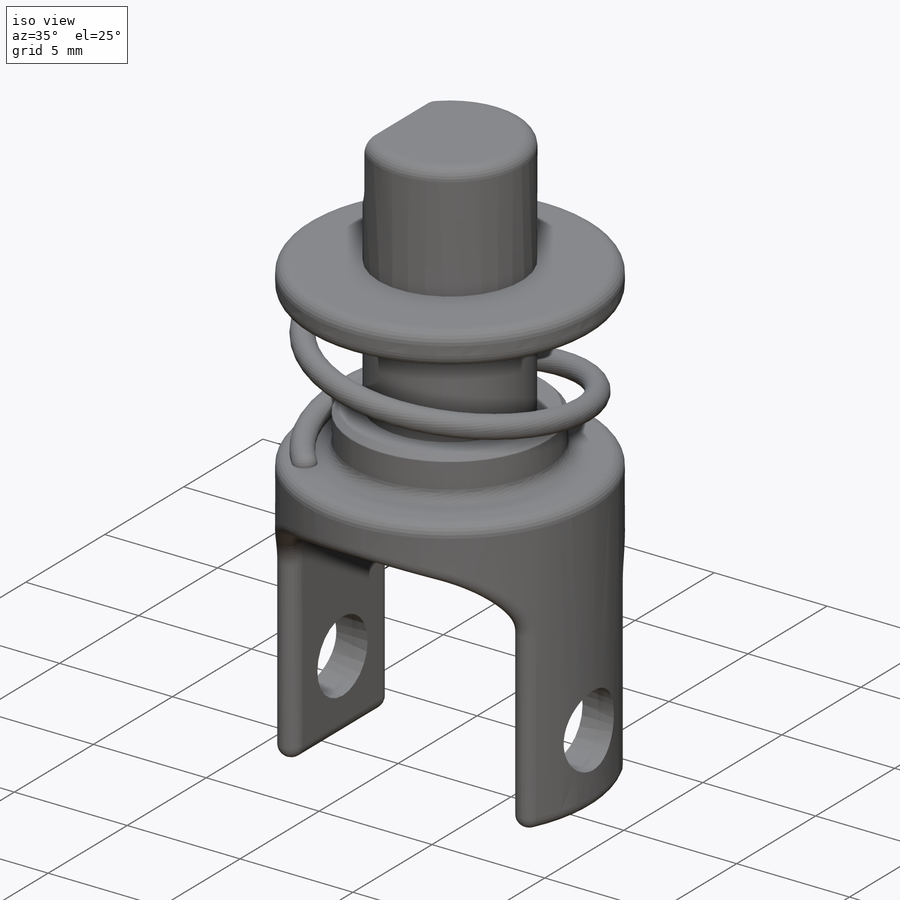
[diagram: iso view]
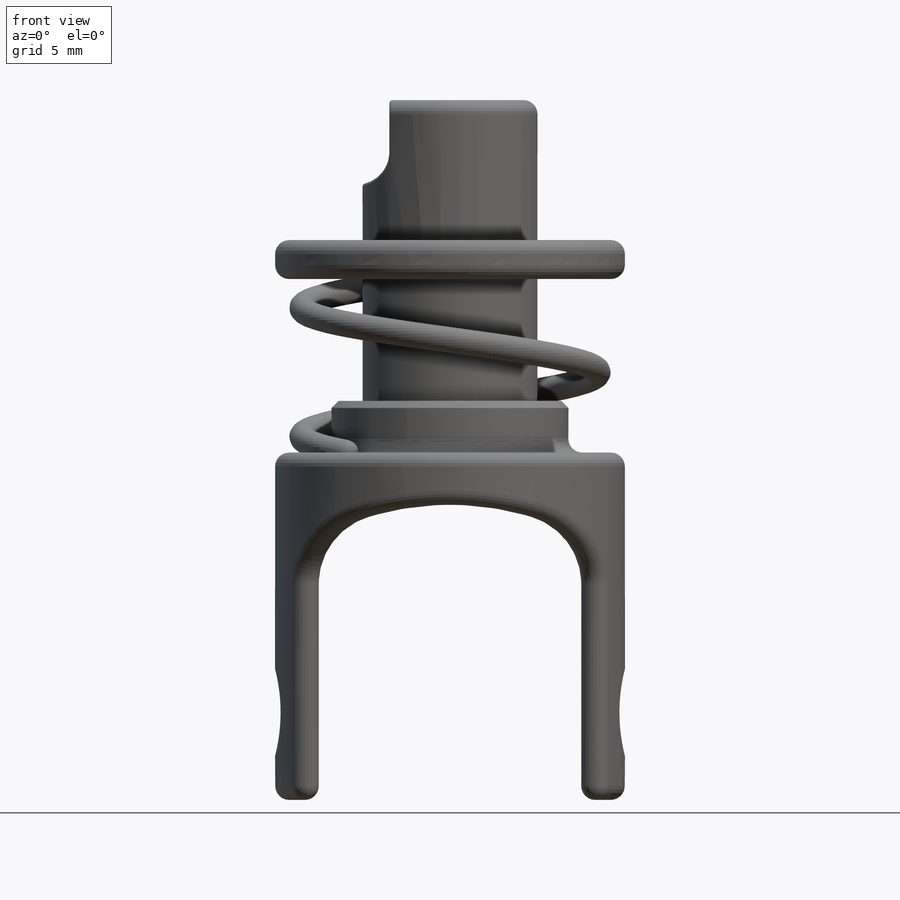
[diagram: front view]
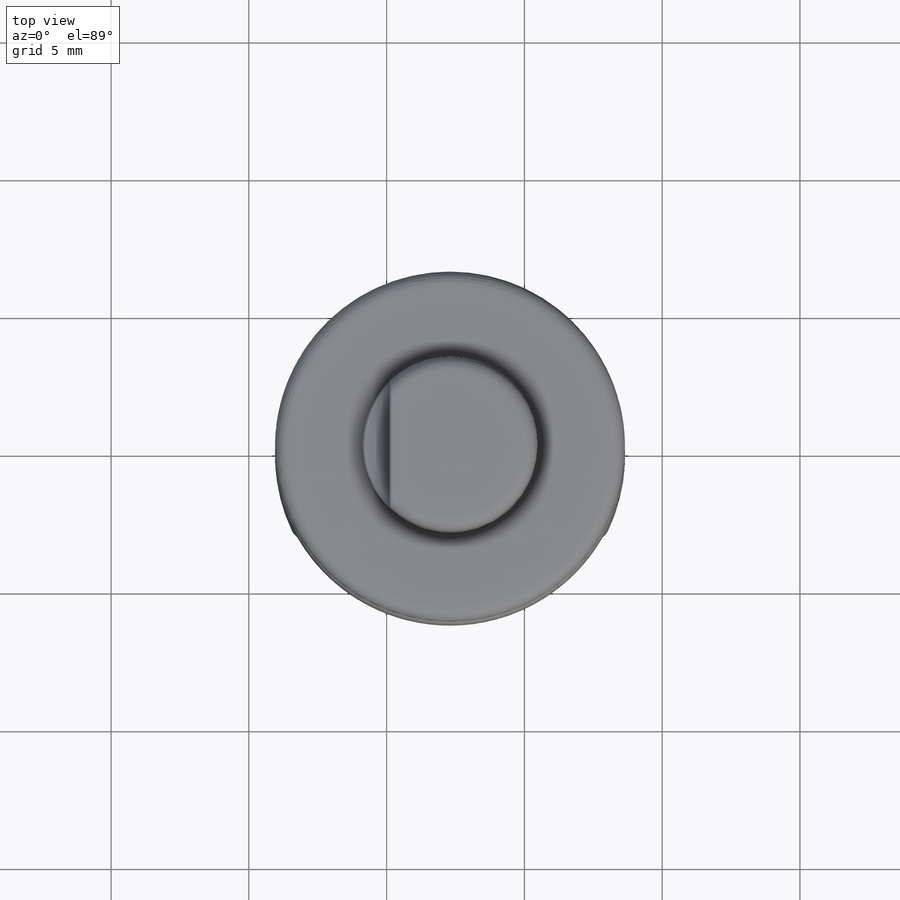
[diagram: top view]
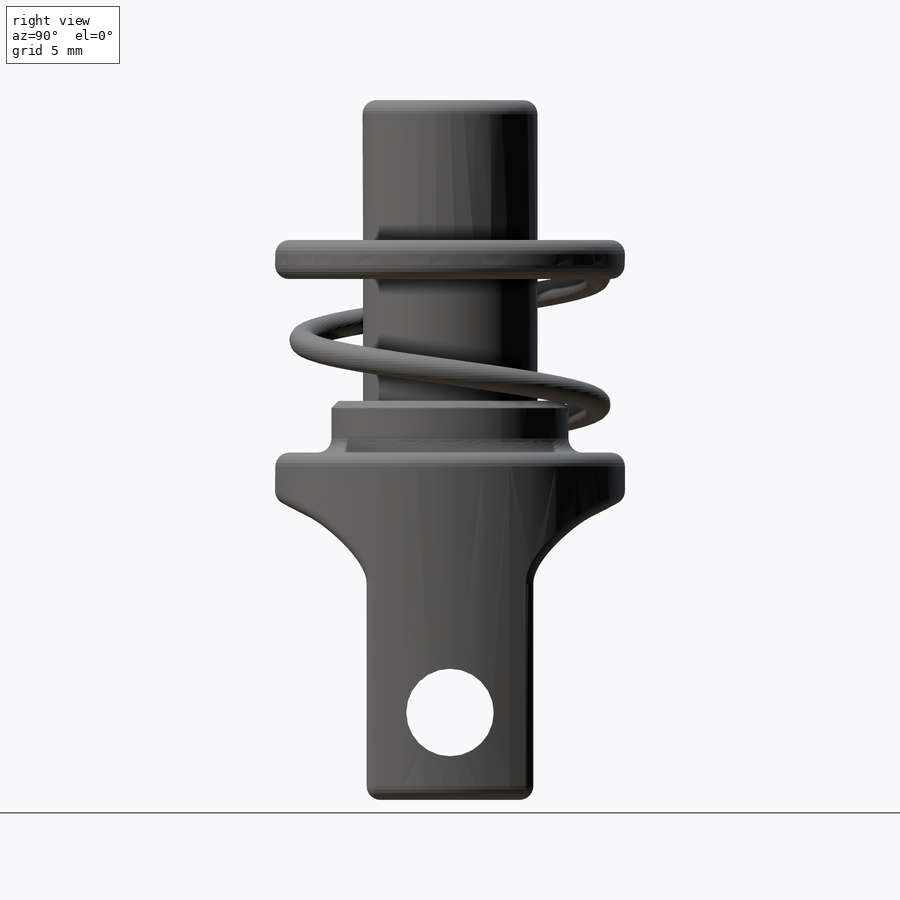
[diagram: right view]
SOLIDWORKS PART (.sldprt)
format: sldprt  version: not decoded by parser v0  size: 606,720 bytes
history: native  units: mm
features: sketch x8, fillet x6, cut_extrude x4, revolve x2, material x1, chamfer x1, helix x1, plane x1, sweep x1 (+11 scaffold rows collapsed)
feature tree (36):
  scaffold x11  (default folders/planes/origin — collapsed)
  material  "Material <not specified>"
  sketch  "Sketch1"  dims[D1=25.4mm D2=5.08mm D3=12.7mm]
  revolve  "Revolve1"  Angle=360deg
  sketch  "Sketch2"  dims[D1=9.525mm D2=6.35mm]
  cut_extrude  "Cut-Extrude1"  [1 undecoded]
  sketch  "Sketch3"  dims[c1.D1=~3.553751mm c1.D2=3.175mm c2.D1=3.175mm]
  cut_extrude  "Cut-Extrude2"  [1 undecoded]
  sketch  "Sketch4"  dims[D1=10.16mm D2=9.525mm]
  cut_extrude  "Cut-Extrude3"  [1 undecoded]
  fillet  "Fillet1"  Radius=2.54mm
  fillet  "Fillet2"  Radius=0.508mm
  fillet  "Fillet3"  Radius=0.508mm
  fillet  "Fillet7"  Radius=0.508mm
  chamfer  "Chamfer1"  Distance=0.254mm Angle=45deg
  fillet  "Fillet8"  Radius=0.0508mm
  sketch  "Sketch7"
  cut_extrude  "Cut-Extrude4"  [1 undecoded]
  sketch  "Sketch8"
  helix  "Helix/Spiral1"  Pitch=7.007143mm
  plane  "Plane2"
  sketch  "Sketch9"  dims[D1=0.9398mm]
  sweep  "Sweep2"
  sketch  "Sketch10"  dims[D1=0.0mm]
  revolve  "Revolve2"  Angle=90deg
  fillet  "Fillet9"  Radius=0.127mm
decode coverage: 16 of 23 modeling features carry decoded parameters
note: ~ marks probable driven/reference dimensions
note: 4 parameter values undecoded
summary: no parameter record found for 4 features
note: suppression state not decoded; provenance and decode notes live in map.json
